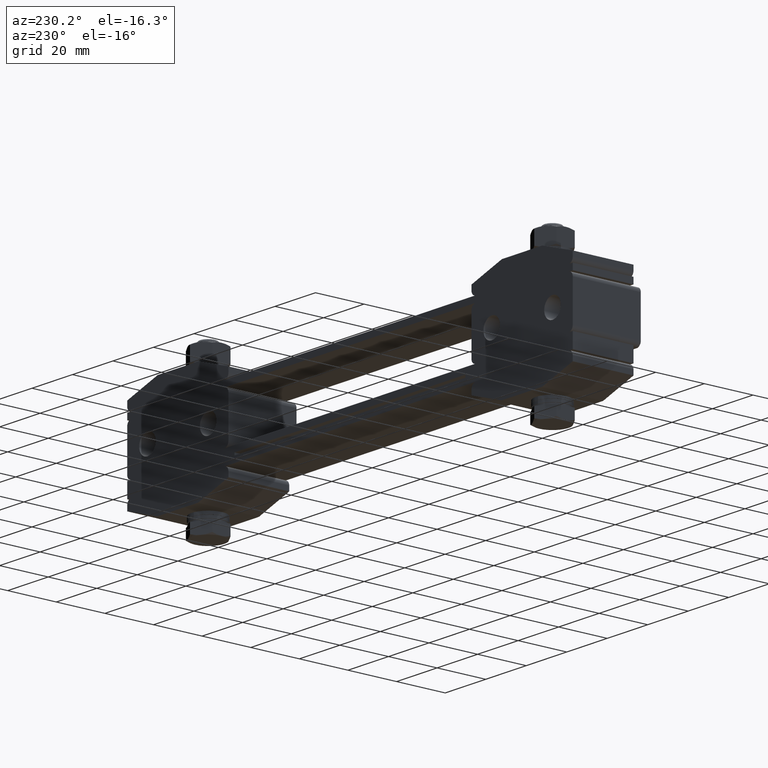
[diagram: clean part render]
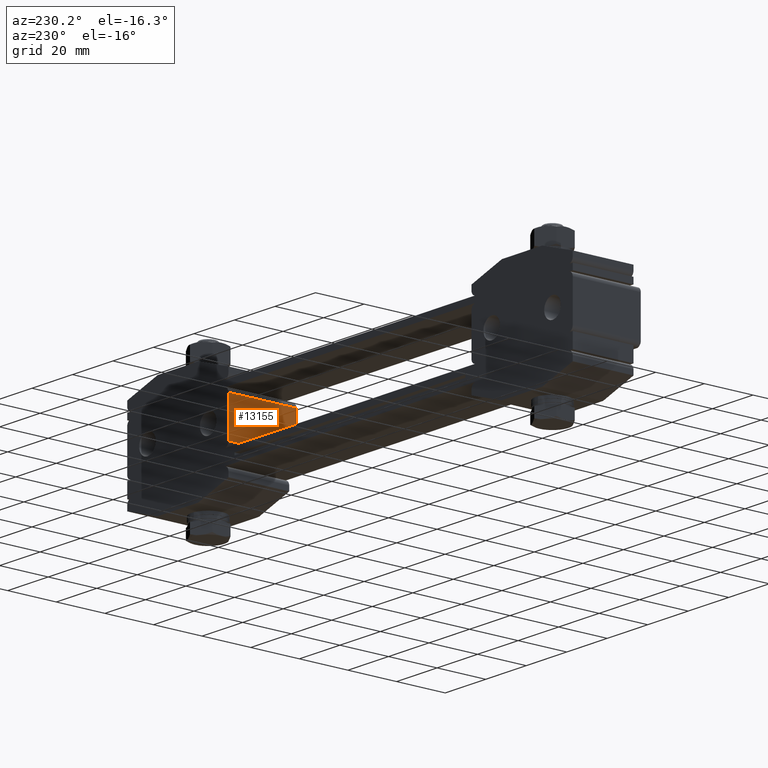
[diagram: same view with one face highlighted and labeled with its STEP entity id]
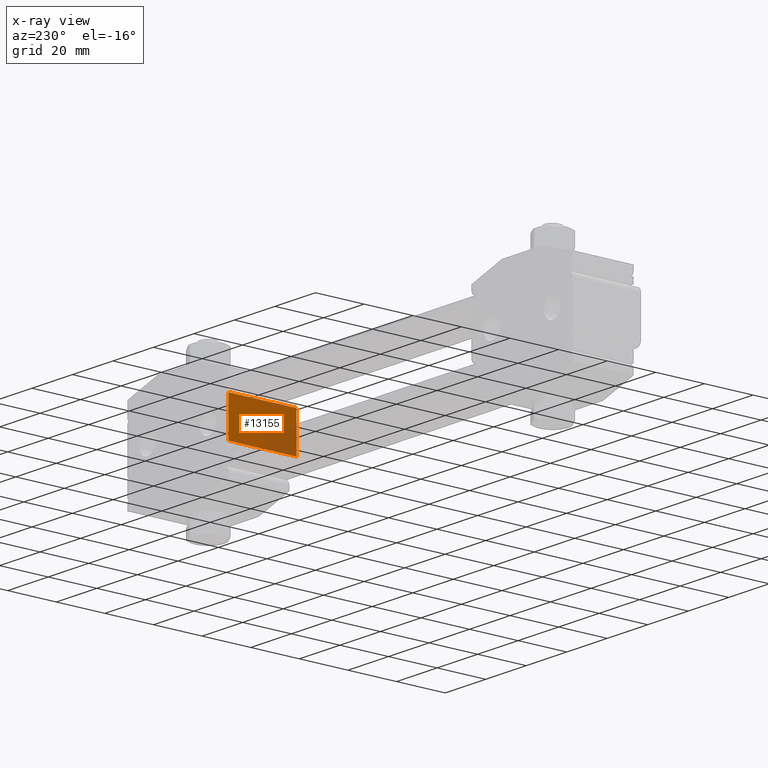
[diagram: x-ray of the same camera — body ghosted, the highlighted face saturated]
A machine part, auxiliary view. The second image highlights one B-rep face of the part: STEP entity #13155.
The next image is the same camera in x-ray: the body ghosted, the highlighted face saturated — about 23% of this face is hidden behind the body in this view.
In plain terms, the highlighted planar face has unit normal (1, 0, 0).
Its self-contained STEP definition (entity closure, byte-faithful):
#224 = VERTEX_POINT ( 'NONE', #1793 ) ;
#567 = AXIS2_PLACEMENT_3D ( 'NONE', #11677, #4908, #1619 ) ;
#1119 = EDGE_CURVE ( 'NONE', #9764, #3824, #7150, .T. ) ;
#1310 = VECTOR ( 'NONE', #19229, 1000.000000000000000 ) ;
#1619 = DIRECTION ( 'NONE',  ( 0.0000000000000000000, 0.0000000000000000000, -1.000000000000000000 ) ) ;
#1757 = CARTESIAN_POINT ( 'NONE',  ( 60.00000000000000000, -15.50000000000000000, 4.500000000000000000 ) ) ;
#1793 = CARTESIAN_POINT ( 'NONE',  ( 60.00000000000000000, 12.50000000000000000, 4.500000000000000000 ) ) ;
#2951 = EDGE_CURVE ( 'NONE', #9764, #9667, #11579, .T. ) ;
#3824 = VERTEX_POINT ( 'NONE', #1757 ) ;
#4150 = ORIENTED_EDGE ( 'NONE', *, *, #11771, .T. ) ;
#4908 = DIRECTION ( 'NONE',  ( 1.000000000000000000, 2.886579864025405000E-015, 0.0000000000000000000 ) ) ;
#5312 = LINE ( 'NONE', #7256, #1310 ) ;
#5420 = CARTESIAN_POINT ( 'NONE',  ( 60.00000000000000000, -15.50000000000000000, 20.50000000000000000 ) ) ;
#6171 = ORIENTED_EDGE ( 'NONE', *, *, #1119, .F. ) ;
#6885 = DIRECTION ( 'NONE',  ( 0.0000000000000000000, 0.0000000000000000000, -1.000000000000000000 ) ) ;
#7150 = LINE ( 'NONE', #17045, #20204 ) ;
#7256 = CARTESIAN_POINT ( 'NONE',  ( 60.00000000000000000, 12.50000000000000000, 4.500000000000000000 ) ) ;
#9325 = CARTESIAN_POINT ( 'NONE',  ( 60.00000000000000000, 12.50000000000000000, 20.50000000000000000 ) ) ;
#9667 = VERTEX_POINT ( 'NONE', #20744 ) ;
#9764 = VERTEX_POINT ( 'NONE', #5420 ) ;
#10137 = EDGE_LOOP ( 'NONE', ( #6171, #11149, #4150, #17076 ) ) ;
#11149 = ORIENTED_EDGE ( 'NONE', *, *, #2951, .T. ) ;
#11579 = LINE ( 'NONE', #9325, #15284 ) ;
#11677 = CARTESIAN_POINT ( 'NONE',  ( 60.00000000000000000, 12.50000000000000000, 22.50000000000000000 ) ) ;
#11771 = EDGE_CURVE ( 'NONE', #9667, #224, #15646, .T. ) ;
#12772 = FACE_OUTER_BOUND ( 'NONE', #10137, .T. ) ;
#13155 = ADVANCED_FACE ( 'NONE', ( #12772 ), #13373, .F. ) ;
#13373 = PLANE ( 'NONE',  #567 ) ;
#15284 = VECTOR ( 'NONE', #17975, 1000.000000000000000 ) ;
#15646 = LINE ( 'NONE', #15816, #19664 ) ;
#15816 = CARTESIAN_POINT ( 'NONE',  ( 60.00000000000000000, 12.50000000000000000, 22.50000000000000000 ) ) ;
#17045 = CARTESIAN_POINT ( 'NONE',  ( 60.00000000000000000, -15.50000000000000000, 22.50000000000000000 ) ) ;
#17076 = ORIENTED_EDGE ( 'NONE', *, *, #21678, .T. ) ;
#17380 = DIRECTION ( 'NONE',  ( 0.0000000000000000000, 0.0000000000000000000, -1.000000000000000000 ) ) ;
#17975 = DIRECTION ( 'NONE',  ( 2.886579864025405000E-015, 1.000000000000000000, -0.0000000000000000000 ) ) ;
#19229 = DIRECTION ( 'NONE',  ( -2.886579864025405000E-015, -1.000000000000000000, 0.0000000000000000000 ) ) ;
#19664 = VECTOR ( 'NONE', #17380, 1000.000000000000000 ) ;
#20204 = VECTOR ( 'NONE', #6885, 1000.000000000000000 ) ;
#20744 = CARTESIAN_POINT ( 'NONE',  ( 60.00000000000000000, 12.50000000000000000, 20.50000000000000000 ) ) ;
#21678 = EDGE_CURVE ( 'NONE', #224, #3824, #5312, .T. ) ;